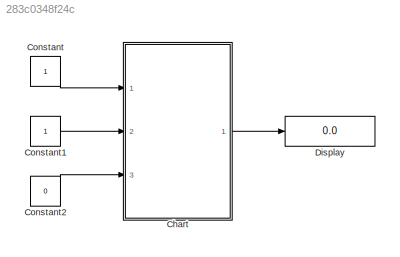
MODEL slx_283c0348f24c
KIND model
CONFIG AbsTol = auto
CONFIG FixedStep = auto
CONFIG MaxStep = auto
CONFIG MinStep = auto
CONFIG RelTol = 1e-3
CONFIG SampleTimeConstraint = Unconstrained
CONFIG Solver = VariableStepAuto
CONFIG SolverMode = Auto
CONFIG SolverName = VariableStepAuto
CONFIG StartTime = 0.0
CONFIG StopTime = inf
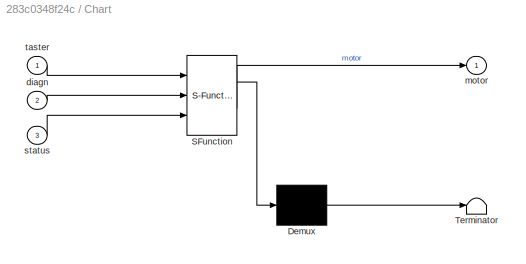
BLOCK [SubSystem] Chart
  ErrorFcn = Stateflow.Translate.translate
  PermitHierarchicalResolution = ExplicitOnly
  Ports = [3, 1]
  RequestExecContextInheritance = off
  SFBlockType = Chart
  TreatAsAtomicUnit = on
  Variant = off
BLOCK [Demux] Chart/ Demux 
  Outputs = 1
  Ports = [1, 1]
BLOCK [S-Function] Chart/ SFunction 
  EnableBusSupport = on
  FunctionName = sf_sfun
  PortCounts = [3 2]
  Ports = [3, 2]
  SFunctionDeploymentMode = off
  Tag = Stateflow S-Function tankdeckel 3
BLOCK [Terminator] Chart/ Terminator 
BLOCK [Inport] Chart/diagn
  IconDisplay = Port number
  Port = 2
BLOCK [Outport] Chart/motor
  IconDisplay = Port number
BLOCK [Inport] Chart/status
  IconDisplay = Port number
  Port = 3
BLOCK [Inport] Chart/taster
  IconDisplay = Port number
BLOCK [Constant] Constant
BLOCK [Constant] Constant1
BLOCK [Constant] Constant2
  Value = 0
BLOCK [Display] Display
  Decimation = 1
  Ports = [1]
LINE Chart:1 -> Display:1
LINE Constant1:1 -> Chart:2
LINE Constant2:1 -> Chart:3
LINE Constant:1 -> Chart:1
CHART Chart states=0 transitions=8
